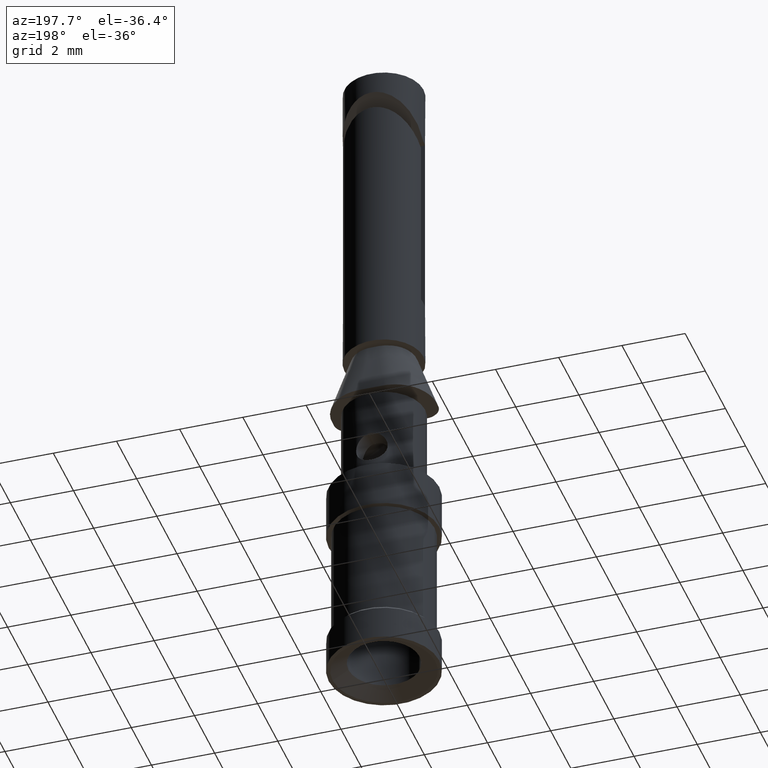
[diagram: clean part render]
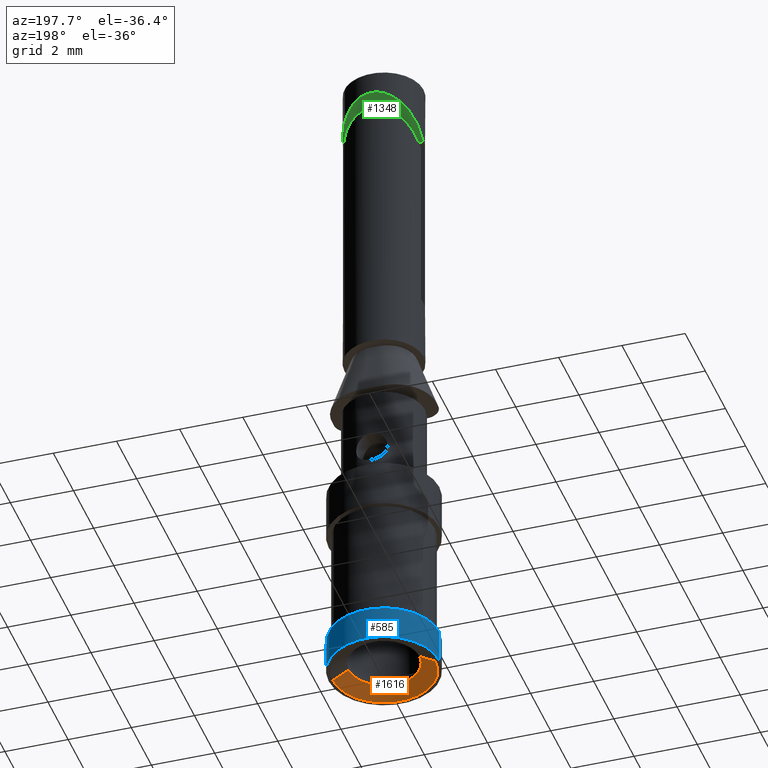
[diagram: same view with three faces highlighted in distinct colors, each labeled with its STEP entity id]
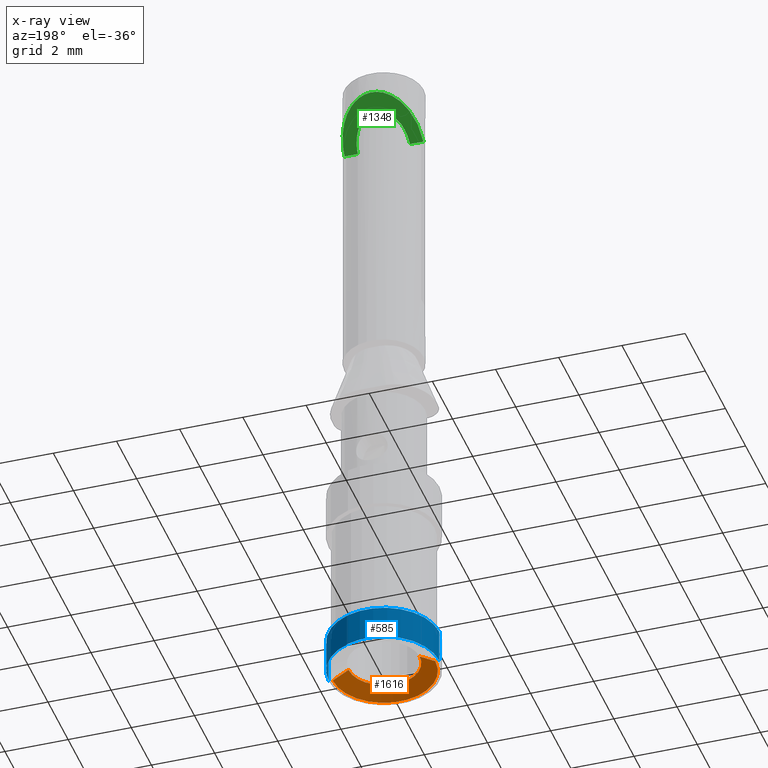
[diagram: x-ray of the same camera — body ghosted, the three highlighted faces saturated]
A machine part, auxiliary view with three faces highlighted in distinct colors.
The next image is the same camera in x-ray (body ghosted, the three faces saturated) — at least one of them is partly hidden behind the body in this view.
Their STEP definitions:

[orange] entity #1616 — the highlighted conical surface has half-angle 60 deg.
#29 = DIRECTION ( 'NONE',  ( 0.8660254031861399637, 1.060575237992202182E-16, -0.5000000010362838365 ) ) ;
#60 = CONICAL_SURFACE ( 'NONE', #1076, 1.625000000000000000, 1.047197550000000144 ) ;
#79 = FACE_OUTER_BOUND ( 'NONE', #1398, .T. ) ;
#100 = VERTEX_POINT ( 'NONE', #1466 ) ;
#108 = AXIS2_PLACEMENT_3D ( 'NONE', #1384, #1643, #1253 ) ;
#140 = CARTESIAN_POINT ( 'NONE',  ( 0.000000000000000000, 0.000000000000000000, 0.000000000000000000 ) ) ;
#232 = DIRECTION ( 'NONE',  ( 0.000000000000000000, 0.000000000000000000, -1.000000000000000000 ) ) ;
#236 = ORIENTED_EDGE ( 'NONE', *, *, #876, .F. ) ;
#378 = EDGE_CURVE ( 'NONE', #663, #100, #1278, .T. ) ;
#395 = DIRECTION ( 'NONE',  ( -1.000000000000000000, 0.000000000000000000, 0.000000000000000000 ) ) ;
#402 = EDGE_CURVE ( 'NONE', #1344, #1463, #741, .T. ) ;
#461 = CARTESIAN_POINT ( 'NONE',  ( -1.625000000000000000, 0.000000000000000000, 0.000000000000000000 ) ) ;
#632 = CARTESIAN_POINT ( 'NONE',  ( 0.000000000000000000, 0.000000000000000000, 0.000000000000000000 ) ) ;
#641 = AXIS2_PLACEMENT_3D ( 'NONE', #140, #1505, #395 ) ;
#663 = VERTEX_POINT ( 'NONE', #1519 ) ;
#741 = LINE ( 'NONE', #461, #1285 ) ;
#783 = CARTESIAN_POINT ( 'NONE',  ( -1.625000000000000000, 0.000000000000000000, 0.000000000000000000 ) ) ;
#876 = EDGE_CURVE ( 'NONE', #1463, #100, #1629, .T. ) ;
#978 = CIRCLE ( 'NONE', #108, 1.125000000000000000 ) ;
#1055 = VECTOR ( 'NONE', #29, 1000.000000000000114 ) ;
#1076 = AXIS2_PLACEMENT_3D ( 'NONE', #632, #232, #1614 ) ;
#1185 = ORIENTED_EDGE ( 'NONE', *, *, #378, .T. ) ;
#1253 = DIRECTION ( 'NONE',  ( -1.000000000000000000, 0.000000000000000000, 0.000000000000000000 ) ) ;
#1278 = LINE ( 'NONE', #1422, #1055 ) ;
#1285 = VECTOR ( 'NONE', #1429, 1000.000000000000114 ) ;
#1344 = VERTEX_POINT ( 'NONE', #1387 ) ;
#1384 = CARTESIAN_POINT ( 'NONE',  ( 0.000000000000000000, 0.000000000000000000, 0.2886751345948130321 ) ) ;
#1387 = CARTESIAN_POINT ( 'NONE',  ( -1.125000000000000000, 0.000000000000000000, 0.2886751345948130321 ) ) ;
#1398 = EDGE_LOOP ( 'NONE', ( #1626, #1185, #236, #1414 ) ) ;
#1414 = ORIENTED_EDGE ( 'NONE', *, *, #402, .F. ) ;
#1422 = CARTESIAN_POINT ( 'NONE',  ( 1.625000000000000000, 1.990051048614448869E-16, 0.000000000000000000 ) ) ;
#1429 = DIRECTION ( 'NONE',  ( -0.8660254031861399637, 0.000000000000000000, -0.5000000010362838365 ) ) ;
#1463 = VERTEX_POINT ( 'NONE', #783 ) ;
#1466 = CARTESIAN_POINT ( 'NONE',  ( 1.625000000000000000, 1.990051048614448869E-16, 0.000000000000000000 ) ) ;
#1505 = DIRECTION ( 'NONE',  ( 0.000000000000000000, 0.000000000000000000, 1.000000000000000000 ) ) ;
#1519 = CARTESIAN_POINT ( 'NONE',  ( 1.125000000000000000, 1.683889348827610259E-16, 0.2886751345948130321 ) ) ;
#1614 = DIRECTION ( 'NONE',  ( -1.000000000000000000, 0.000000000000000000, 0.000000000000000000 ) ) ;
#1616 = ADVANCED_FACE ( 'NONE', ( #79 ), #60, .F. ) ;
#1626 = ORIENTED_EDGE ( 'NONE', *, *, #1785, .F. ) ;
#1629 = CIRCLE ( 'NONE', #641, 1.625000000000000000 ) ;
#1643 = DIRECTION ( 'NONE',  ( 0.000000000000000000, 0.000000000000000000, -1.000000000000000000 ) ) ;
#1785 = EDGE_CURVE ( 'NONE', #663, #1344, #978, .T. ) ;

[blue] entity #585 — the highlighted cylindrical surface (partial cylindrical patch) has radius 1.75 mm, axis along (0, 0, -1).
#69 = DIRECTION ( 'NONE',  ( 0.000000000000000000, 0.000000000000000000, -1.000000000000000000 ) ) ;
#87 = CARTESIAN_POINT ( 'NONE',  ( -1.750000000000000000, 0.000000000000000000, 1.000000000000000000 ) ) ;
#163 = LINE ( 'NONE', #477, #1141 ) ;
#164 = CARTESIAN_POINT ( 'NONE',  ( -1.749999999730765810, 0.000000000000000000, 1.074999999999999956 ) ) ;
#195 = DIRECTION ( 'NONE',  ( -1.000000000000000000, 0.000000000000000000, 0.000000000000000000 ) ) ;
#222 = LINE ( 'NONE', #87, #1130 ) ;
#223 = AXIS2_PLACEMENT_3D ( 'NONE', #1086, #1667, #424 ) ;
#286 = VERTEX_POINT ( 'NONE', #543 ) ;
#304 = CARTESIAN_POINT ( 'NONE',  ( -1.750000000000000000, 0.000000000000000000, 0.000000000000000000 ) ) ;
#316 = CARTESIAN_POINT ( 'NONE',  ( 5.421010862427519705E-17, 0.000000000000000000, 1.074999999999999956 ) ) ;
#386 = EDGE_CURVE ( 'NONE', #564, #286, #163, .T. ) ;
#424 = DIRECTION ( 'NONE',  ( 1.000000000000000000, 1.224646799147350002E-16, 0.000000000000000000 ) ) ;
#477 = CARTESIAN_POINT ( 'NONE',  ( 1.750000000000000000, 2.143131898507868297E-16, 1.000000000000000000 ) ) ;
#543 = CARTESIAN_POINT ( 'NONE',  ( 1.750000000000000000, 2.143131898507868297E-16, 0.000000000000000000 ) ) ;
#564 = VERTEX_POINT ( 'NONE', #1451 ) ;
#585 = ADVANCED_FACE ( 'NONE', ( #1756 ), #887, .T. ) ;
#642 = AXIS2_PLACEMENT_3D ( 'NONE', #316, #69, #195 ) ;
#668 = ORIENTED_EDGE ( 'NONE', *, *, #1591, .F. ) ;
#689 = CIRCLE ( 'NONE', #223, 1.750000000000000000 ) ;
#887 = CYLINDRICAL_SURFACE ( 'NONE', #1715, 1.750000000000000000 ) ;
#896 = DIRECTION ( 'NONE',  ( 0.000000000000000000, 0.000000000000000000, -1.000000000000000000 ) ) ;
#927 = ORIENTED_EDGE ( 'NONE', *, *, #1738, .F. ) ;
#992 = DIRECTION ( 'NONE',  ( 0.000000000000000000, 0.000000000000000000, -1.000000000000000000 ) ) ;
#1033 = VERTEX_POINT ( 'NONE', #304 ) ;
#1086 = CARTESIAN_POINT ( 'NONE',  ( 0.000000000000000000, 0.000000000000000000, 0.000000000000000000 ) ) ;
#1130 = VECTOR ( 'NONE', #1336, 1000.000000000000000 ) ;
#1141 = VECTOR ( 'NONE', #992, 1000.000000000000000 ) ;
#1190 = ORIENTED_EDGE ( 'NONE', *, *, #1421, .T. ) ;
#1249 = VERTEX_POINT ( 'NONE', #164 ) ;
#1336 = DIRECTION ( 'NONE',  ( 0.000000000000000000, 0.000000000000000000, -1.000000000000000000 ) ) ;
#1345 = DIRECTION ( 'NONE',  ( -1.000000000000000000, 0.000000000000000000, 0.000000000000000000 ) ) ;
#1378 = EDGE_LOOP ( 'NONE', ( #1190, #1487, #927, #668 ) ) ;
#1397 = CIRCLE ( 'NONE', #642, 1.750000000000000000 ) ;
#1421 = EDGE_CURVE ( 'NONE', #1249, #564, #1397, .T. ) ;
#1451 = CARTESIAN_POINT ( 'NONE',  ( 1.749999999730765810, 2.143131898178151063E-16, 1.074999999999999956 ) ) ;
#1483 = CARTESIAN_POINT ( 'NONE',  ( 0.000000000000000000, 0.000000000000000000, 1.000000000000000000 ) ) ;
#1487 = ORIENTED_EDGE ( 'NONE', *, *, #386, .T. ) ;
#1591 = EDGE_CURVE ( 'NONE', #1249, #1033, #222, .T. ) ;
#1667 = DIRECTION ( 'NONE',  ( 0.000000000000000000, 0.000000000000000000, -1.000000000000000000 ) ) ;
#1715 = AXIS2_PLACEMENT_3D ( 'NONE', #1483, #896, #1345 ) ;
#1738 = EDGE_CURVE ( 'NONE', #1033, #286, #689, .T. ) ;
#1756 = FACE_OUTER_BOUND ( 'NONE', #1378, .T. ) ;

[green] entity #1348 — the highlighted planar face has unit normal (0, -0.7071, 0.7071).
#25 =( BOUNDED_CURVE ( )  B_SPLINE_CURVE ( 3, ( #1770, #657, #964, #1654 ),
 .UNSPECIFIED., .F., .F. ) 
 B_SPLINE_CURVE_WITH_KNOTS ( ( 4, 4 ),
 ( 4.712388980384687898, 7.853981633974484566 ),
 .UNSPECIFIED. ) 
 CURVE ( )  GEOMETRIC_REPRESENTATION_ITEM ( )  RATIONAL_B_SPLINE_CURVE ( ( 1.000000000000000000, 0.3333333333333321491, 0.3333333333333321491, 1.000000000000000000 ) ) 
 REPRESENTATION_ITEM ( '' )  );
#57 = DIRECTION ( 'NONE',  ( -1.000000000000000000, -1.220206958894736097E-31, 0.000000000000000000 ) ) ;
#97 = CARTESIAN_POINT ( 'NONE',  ( 0.8249999999999999556, -4.187992942670209660E-15, 19.55000000000000071 ) ) ;
#206 = ORIENTED_EDGE ( 'NONE', *, *, #762, .T. ) ;
#269 = AXIS2_PLACEMENT_3D ( 'NONE', #1019, #615, #57 ) ;
#357 = CARTESIAN_POINT ( 'NONE',  ( -0.8250000000000033973, 1.650000000000001688, 21.20000000000000284 ) ) ;
#415 = CARTESIAN_POINT ( 'NONE',  ( -1.250000000000000000, -3.220164666810009986E-15, 19.55000000000000071 ) ) ;
#419 = VECTOR ( 'NONE', #1642, 1000.000000000000000 ) ;
#420 = VERTEX_POINT ( 'NONE', #1683 ) ;
#486 = CARTESIAN_POINT ( 'NONE',  ( 0.8250000000000040634, 1.650000000000001688, 21.20000000000000284 ) ) ;
#503 = VERTEX_POINT ( 'NONE', #1474 ) ;
#559 = FACE_OUTER_BOUND ( 'NONE', #1349, .T. ) ;
#615 = DIRECTION ( 'NONE',  ( 8.628166150854821001E-32, -0.7071067811865470176, 0.7071067811865480168 ) ) ;
#633 = EDGE_CURVE ( 'NONE', #1526, #420, #1374, .T. ) ;
#657 = CARTESIAN_POINT ( 'NONE',  ( -1.250000000000005107, 2.500000000000009770, 22.05000000000000782 ) ) ;
#698 = PLANE ( 'NONE',  #269 ) ;
#759 = EDGE_CURVE ( 'NONE', #503, #984, #799, .T. ) ;
#762 = EDGE_CURVE ( 'NONE', #503, #420, #25, .T. ) ;
#799 = LINE ( 'NONE', #1490, #1221 ) ;
#964 = CARTESIAN_POINT ( 'NONE',  ( 1.250000000000004441, 2.500000000000010214, 22.05000000000000782 ) ) ;
#984 = VERTEX_POINT ( 'NONE', #1427 ) ;
#1019 = CARTESIAN_POINT ( 'NONE',  ( 1.071565949253949926E-16, 1.426776695296650077, 20.97677669529659994 ) ) ;
#1075 = CARTESIAN_POINT ( 'NONE',  ( -0.8249999999999999556, -3.220164666810009986E-15, 19.55000000000000071 ) ) ;
#1090 = DIRECTION ( 'NONE',  ( 1.000000000000000000, 1.220206958894740038E-31, 0.000000000000000000 ) ) ;
#1210 = ORIENTED_EDGE ( 'NONE', *, *, #1553, .F. ) ;
#1221 = VECTOR ( 'NONE', #1090, 1000.000000000000000 ) ;
#1348 = ADVANCED_FACE ( 'NONE', ( #559 ), #698, .F. ) ;
#1349 = EDGE_LOOP ( 'NONE', ( #1210, #1566, #206, #1670 ) ) ;
#1374 = LINE ( 'NONE', #415, #419 ) ;
#1427 = CARTESIAN_POINT ( 'NONE',  ( -0.8249999999999999556, -3.220164666810009986E-15, 19.55000000000000071 ) ) ;
#1474 = CARTESIAN_POINT ( 'NONE',  ( -1.250000000000000000, -3.220164666810009986E-15, 19.55000000000000071 ) ) ;
#1490 = CARTESIAN_POINT ( 'NONE',  ( -1.250000000000000000, -3.220164666810009986E-15, 19.55000000000000071 ) ) ;
#1526 = VERTEX_POINT ( 'NONE', #97 ) ;
#1553 = EDGE_CURVE ( 'NONE', #984, #1526, #1569, .T. ) ;
#1566 = ORIENTED_EDGE ( 'NONE', *, *, #759, .F. ) ;
#1569 =( BOUNDED_CURVE ( )  B_SPLINE_CURVE ( 3, ( #1075, #357, #486, #1634 ),
 .UNSPECIFIED., .F., .T. ) 
 B_SPLINE_CURVE_WITH_KNOTS ( ( 4, 4 ),
 ( 1.570796326794894560, 4.712388980384692339 ),
 .UNSPECIFIED. ) 
 CURVE ( )  GEOMETRIC_REPRESENTATION_ITEM ( )  RATIONAL_B_SPLINE_CURVE ( ( 1.000000000000000000, 0.3333333333333318715, 0.3333333333333318715, 1.000000000000000000 ) ) 
 REPRESENTATION_ITEM ( '' )  );
#1634 = CARTESIAN_POINT ( 'NONE',  ( 0.8249999999999999556, -4.187992942670209660E-15, 19.55000000000000071 ) ) ;
#1642 = DIRECTION ( 'NONE',  ( 1.000000000000000000, 1.220206958894740038E-31, 0.000000000000000000 ) ) ;
#1654 = CARTESIAN_POINT ( 'NONE',  ( 1.250000000000000000, -4.187992942670209660E-15, 19.55000000000000071 ) ) ;
#1670 = ORIENTED_EDGE ( 'NONE', *, *, #633, .F. ) ;
#1683 = CARTESIAN_POINT ( 'NONE',  ( 1.250000000000000000, -4.187992942670209660E-15, 19.55000000000000071 ) ) ;
#1770 = CARTESIAN_POINT ( 'NONE',  ( -1.250000000000000000, -3.220164666810009986E-15, 19.55000000000000071 ) ) ;